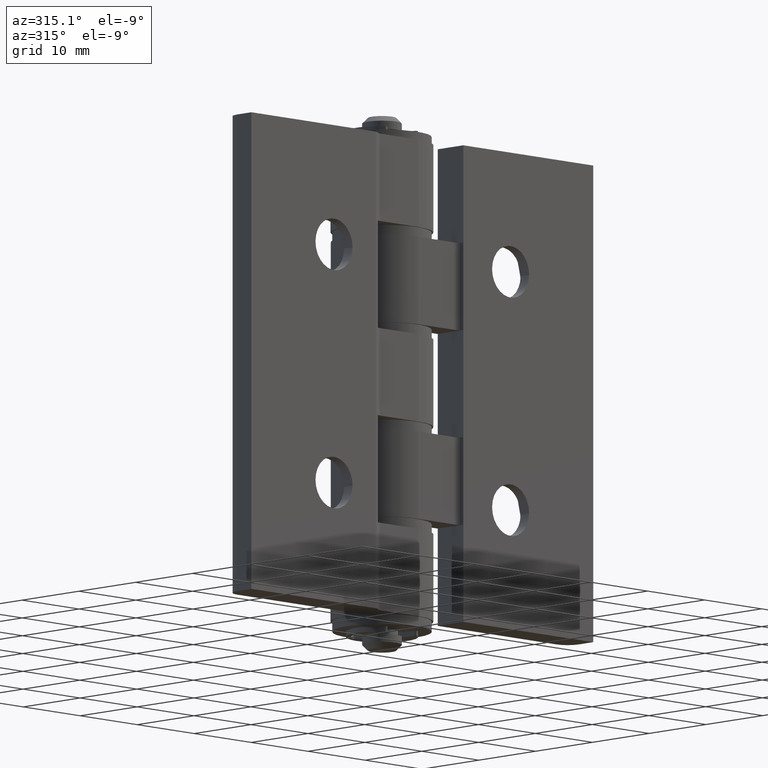
[diagram: clean part render]
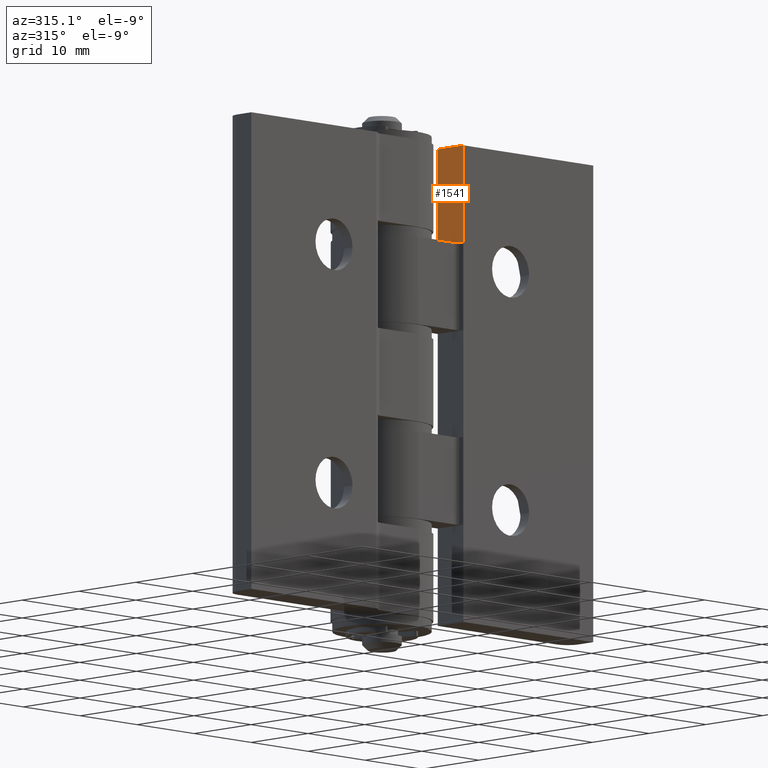
[diagram: same view with one face highlighted and labeled with its STEP entity id]
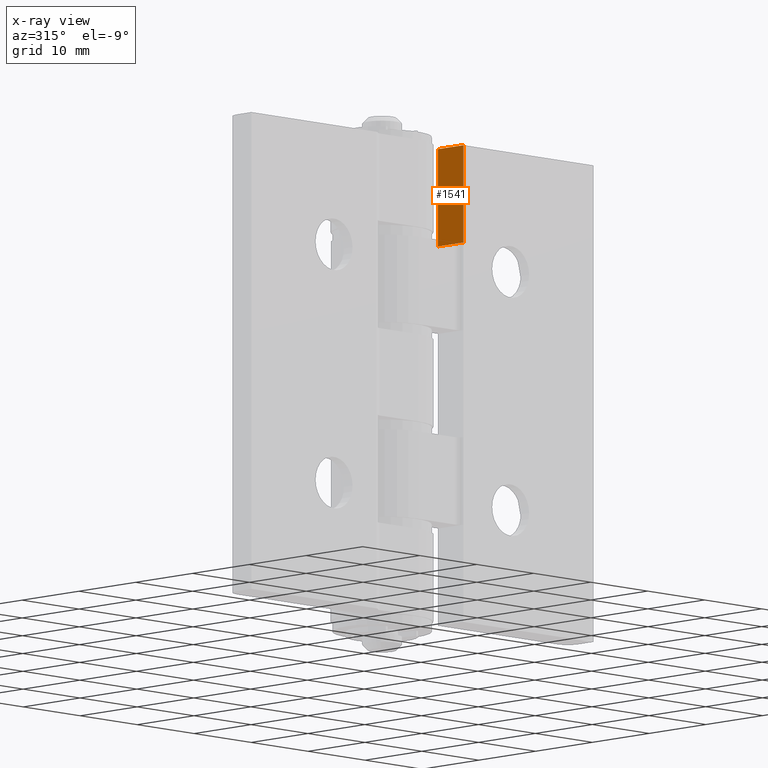
[diagram: x-ray of the same camera — body ghosted, the highlighted face saturated]
A machine part, auxiliary view. The second image highlights one B-rep face of the part: STEP entity #1541.
The next image is the same camera in x-ray: the body ghosted, the highlighted face saturated — about 0% of this face is hidden behind the body in this view.
In plain terms, the highlighted planar face has unit normal (1, -0, 0).
Its self-contained STEP definition (entity closure, byte-faithful):
#167=PLANE('',#1707);
#246=FACE_OUTER_BOUND('',#377,.T.);
#377=EDGE_LOOP('',(#1298,#1299,#1300,#1301));
#480=LINE('',#2552,#583);
#493=LINE('',#2588,#596);
#494=LINE('',#2590,#597);
#495=LINE('',#2591,#598);
#583=VECTOR('',#2071,4.5);
#596=VECTOR('',#2110,12.25);
#597=VECTOR('',#2111,4.5);
#598=VECTOR('',#2112,12.25);
#792=VERTEX_POINT('',#2503);
#810=VERTEX_POINT('',#2551);
#820=VERTEX_POINT('',#2587);
#821=VERTEX_POINT('',#2589);
#978=EDGE_CURVE('',#810,#792,#480,.T.);
#995=EDGE_CURVE('',#820,#792,#493,.T.);
#996=EDGE_CURVE('',#821,#820,#494,.T.);
#997=EDGE_CURVE('',#810,#821,#495,.T.);
#1298=ORIENTED_EDGE('',*,*,#978,.T.);
#1299=ORIENTED_EDGE('',*,*,#995,.F.);
#1300=ORIENTED_EDGE('',*,*,#996,.F.);
#1301=ORIENTED_EDGE('',*,*,#997,.F.);
#1541=ADVANCED_FACE('',(#246),#167,.F.);
#1707=AXIS2_PLACEMENT_3D('',#2586,#2108,#2109);
#2071=DIRECTION('',(-1.58603289232165E-15,-1.,2.67649235699987E-31));
#2108=DIRECTION('center_axis',(1.,-1.58603289232165E-15,0.));
#2109=DIRECTION('ref_axis',(-1.59872115546023E-15,-1.,0.));
#2110=DIRECTION('',(0.,0.,-1.));
#2111=DIRECTION('',(-1.58603289232165E-15,-1.,0.));
#2112=DIRECTION('',(9.06304509898087E-17,1.67700022368412E-32,1.));
#2503=CARTESIAN_POINT('',(7.2,0.,-12.25));
#2551=CARTESIAN_POINT('',(7.2,4.5,-12.25));
#2552=CARTESIAN_POINT('',(7.2,2.6,-12.25));
#2586=CARTESIAN_POINT('Origin',(7.2,0.699999999999999,0.));
#2587=CARTESIAN_POINT('',(7.2,0.,0.));
#2588=CARTESIAN_POINT('',(7.2,0.,0.));
#2589=CARTESIAN_POINT('',(7.2,4.5,2.22044604925031E-15));
#2590=CARTESIAN_POINT('',(7.2,1.47500000000001,0.));
#2591=CARTESIAN_POINT('',(7.2,4.5,7.83953401061846E-16));